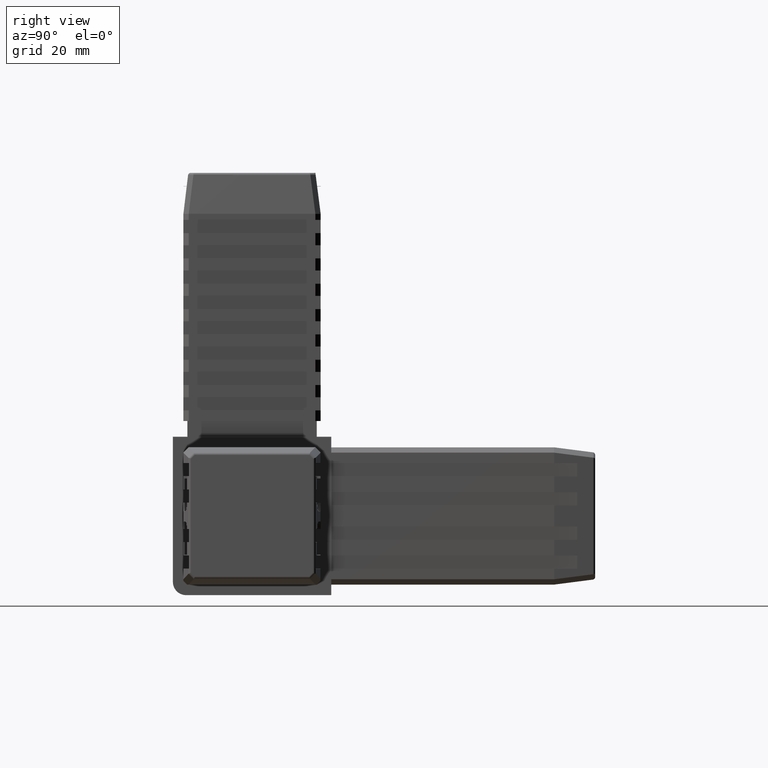
[diagram: clean part render]
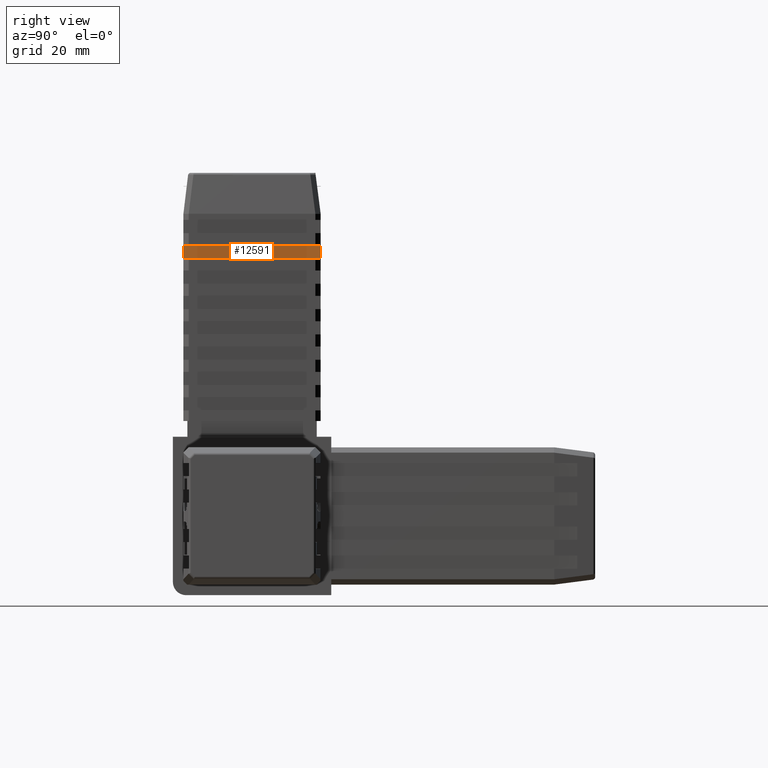
[diagram: same view with one face highlighted and labeled with its STEP entity id]
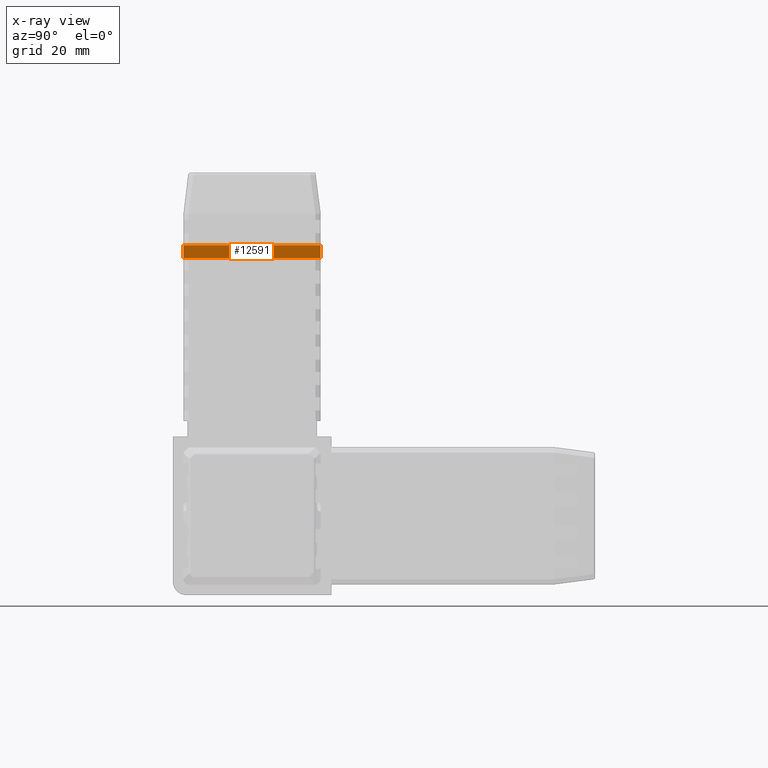
[diagram: x-ray of the same camera — body ghosted, the highlighted face saturated]
A machine part, right view. The second image highlights one B-rep face of the part: STEP entity #12591.
The next image is the same camera in x-ray: the body ghosted, the highlighted face saturated — about 0% of this face is hidden behind the body in this view.
In plain terms, the highlighted planar face has unit normal (-1, 0, 0).
Its self-contained STEP definition (entity closure, byte-faithful):
#733=PLANE('',#13602);
#1423=FACE_OUTER_BOUND('',#2116,.T.);
#2116=EDGE_LOOP('',(#11212,#11213,#11214,#11215));
#2640=LINE('',#18178,#4130);
#2686=LINE('',#18270,#4176);
#2694=LINE('',#18285,#4184);
#2857=LINE('',#18588,#4347);
#4130=VECTOR('',#14463,10.);
#4176=VECTOR('',#14533,10.);
#4184=VECTOR('',#14545,10.);
#4347=VECTOR('',#14798,10.);
#5657=VERTEX_POINT('',#18175);
#5658=VERTEX_POINT('',#18177);
#5692=VERTEX_POINT('',#18269);
#5697=VERTEX_POINT('',#18283);
#6885=EDGE_CURVE('',#5657,#5658,#2640,.T.);
#6931=EDGE_CURVE('',#5658,#5692,#2686,.T.);
#6939=EDGE_CURVE('',#5657,#5697,#2694,.T.);
#7102=EDGE_CURVE('',#5692,#5697,#2857,.T.);
#11212=ORIENTED_EDGE('',*,*,#6885,.F.);
#11213=ORIENTED_EDGE('',*,*,#6939,.T.);
#11214=ORIENTED_EDGE('',*,*,#7102,.F.);
#11215=ORIENTED_EDGE('',*,*,#6931,.F.);
#12591=ADVANCED_FACE('',(#1423),#733,.F.);
#13602=AXIS2_PLACEMENT_3D('',#20881,#16796,#16797);
#14463=DIRECTION('',(0.,0.,-1.));
#14533=DIRECTION('',(0.,-1.,0.));
#14545=DIRECTION('',(0.,-1.,0.));
#14798=DIRECTION('',(0.,0.,1.));
#16796=DIRECTION('center_axis',(-1.,0.,0.));
#16797=DIRECTION('ref_axis',(0.,0.,-1.));
#18175=CARTESIAN_POINT('',(12.,13.,51.294));
#18177=CARTESIAN_POINT('',(12.,13.,48.794));
#18178=CARTESIAN_POINT('',(12.,13.,34.647));
#18269=CARTESIAN_POINT('',(12.,-13.,48.794));
#18270=CARTESIAN_POINT('',(12.,13.,48.794));
#18283=CARTESIAN_POINT('',(12.,-13.,51.294));
#18285=CARTESIAN_POINT('',(12.,13.,51.294));
#18588=CARTESIAN_POINT('',(12.,-13.,34.647));
#20881=CARTESIAN_POINT('Origin',(12.,13.,51.294));